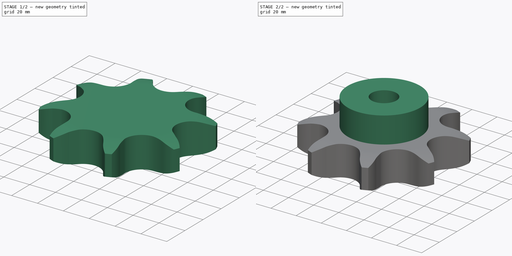
[diagram: build sequence overview — one tinted view per stage of 2, left to right]
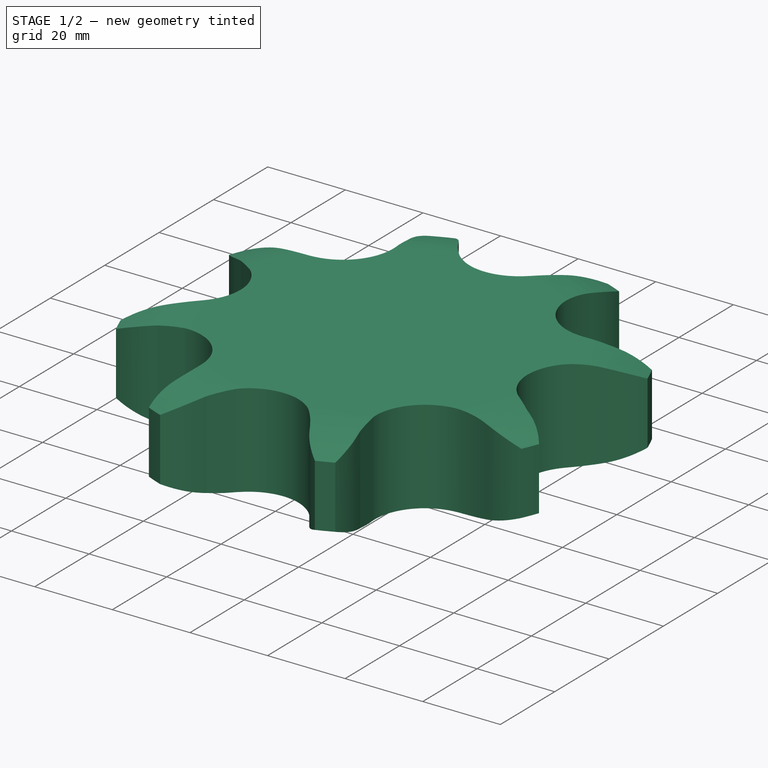
[diagram: stage 1 of 2 — iso view after this stage's code; geometry added in this stage tinted green]
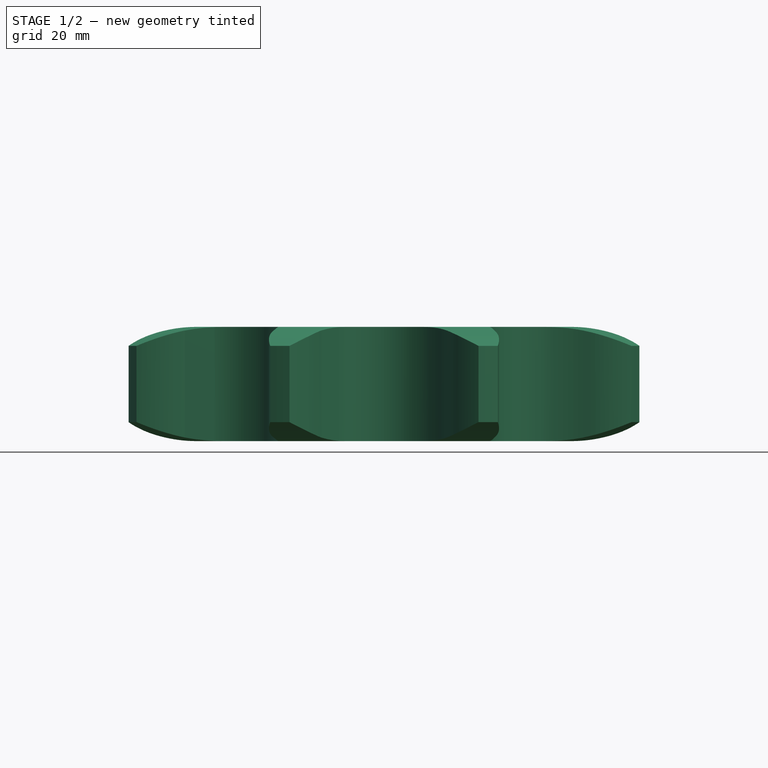
[diagram: stage 1 of 2 — front view after this stage's code; geometry added in this stage tinted green]
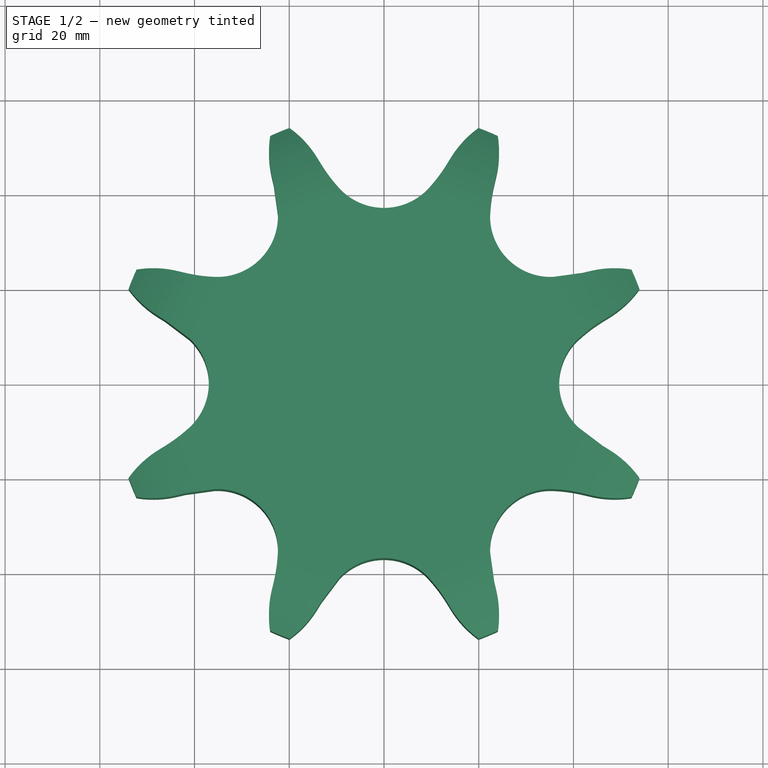
[diagram: stage 1 of 2 — top view after this stage's code; geometry added in this stage tinted green]
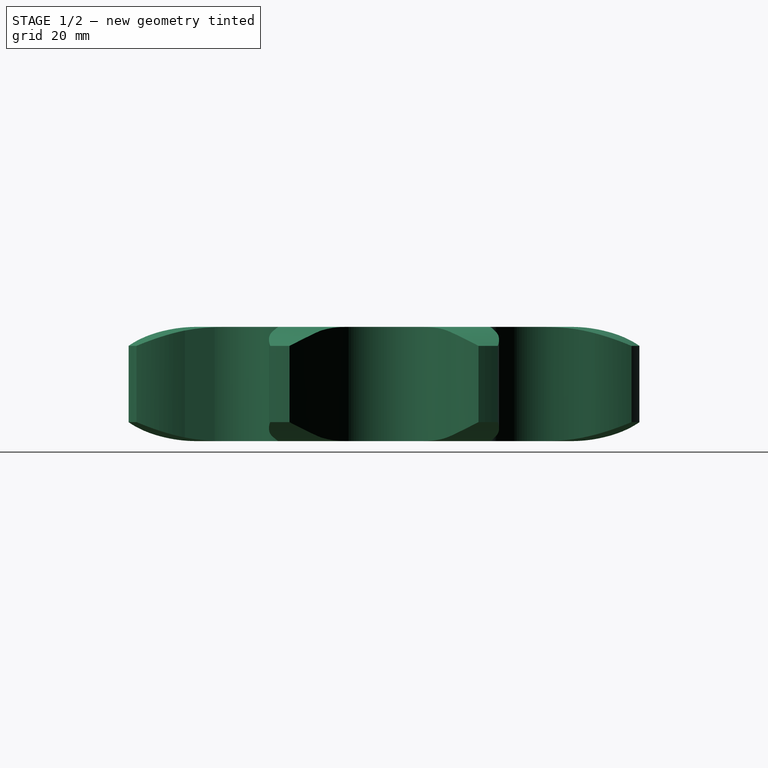
[diagram: stage 1 of 2 — right view after this stage's code; geometry added in this stage tinted green]
FCSTD DOCUMENT  (FreeCAD 0.21R33694 (Git))
Label: Sprocket ANSI simplex 1½x1
License: Attribution 4.0 International (CC BY 4.0)
LicenseURL: http://creativecommons.org/licenses/by/4.0/
objects: Sketcher::SketchObject×3, PartDesign::Pad×2, Spreadsheet::Sheet×1, Part::Part2DObjectPython×1, PartDesign::Groove×1, PartDesign::Pocket×1, PartDesign::Body×1, App::Part×1
note: 13 computed .brp shape members not serialized (recipe doc carries the construction recipe); baked Part::Feature solids carry a one-line shape summary decoded from their .brp

FEATURE [Spreadsheet::Sheet] Spreadsheet  label="Data"
  TeethNumber = 0
  cells = A1='Teeth Number; B1='P (Pitch); C1='Wc (Chain width); D1='Dr (Roller diameter); E1='Tr (Tooth radius); F1='Rw (Radius width); G1='Wt (Tooth width); H1='z (Number of teeth); I1='De (External Diameter); J1='Dp (pitch diameter); K1='d (Hub diameter); L1='D (Hole diameter); M1='H (Total height); A2==hiddenref(.TeethNumber.String); B2(P)==.B3; C2(Wc)==.C3; D2(Dr)==.D3; E2(Tr)==.E3; F2(Rw)==.F3; G2(Wt)==.G3; H2(z)==.H3; I2(De)==.I3; J2(Dp)==.J3; K2(d)==.K3; L2(D)==.L3; M2(H)==.M3; A3='Z 8; B3=38.1; C3=25.04; D3=25.4; E3=38; F3=4; G3=24.1; H3=8; I3=115; J3=99.55; K3=58; L3=20; M3=45; A4='Z 9; B4=38.1; C4=25.04; D4=25.4; E4=38; F4=4; G4=24.1; H4=9; I4=126.4; J4=111.4; K4=70; L4=20; M4=45; A5='Z 10; B5=38.1; C5=25.04; D5=25.4; E5=38; F5=4; G5=24.1; H5=10; I5=138; J5=123.29; K5=80; L5=20; M5=45; A6='Z 11; B6=38.1; C6=25.04; D6=25.4; E6=38; F6=4; G6=24.1; H6=11; I6=150; J6=135.21; K6=90; L6=25; M6=50; A7='Z 12; B7=38.1; C7=25.04; D7=25.4; E7=38; F7=4; G7=24.1; H7=12; I7=162; J7=147.22; K7=102; L7=25; M7=50; A8='Z 13; B8=38.1; C8=25.04; D8=25.4; E8=38; F8=4; G8=24.1; H8=13; I8=174.2; J8=159.18; K8=114; L8=25; M8=50; A9='Z 14; B9=38.1; C9=25.04; D9=25.4; E9=38; F9=4; G9=24.1; H9=14; I9=186.2; J9=171.22; K9=128; L9=25; M9=50; A10='Z 15; B10=38.1; C10=25.04; D10=25.4; E10=38; F10=4; G10=24.1; H10=15; I10=198.2; J10=183.26; K10=140; L10=25; M10=50; A11='Z 16; B11=38.1; C11=25.04; D11=25.4; E11=38; F11=4; G11=24.1; H11=16; I11=210.3; J11=195.3; K11=140; L11=25; M11=55; A12='Z 17; B12=38.1; C12=25.04; D12=25.4; E12=38; F12=4; G12=24.1; H12=17; I12=222.3; J12=207.34; K12=140; L12=25; M12=55; A13='Z 18; B13=38.1; C13=25.04; D13=25.4; E13=38; F13=4; G13=24.1; H13=18; I13=234.3; J13=219.42; K13=140; L13=25; M13=55; A14='Z 19; B14=38.1; C14=25.04; D14=25.4; E14=38; F14=4; G14=24.1; H14=19; I14=246.5; J14=231.49; K14=140; L14=25; M14=55; A15='Z 20; B15=38.1; C15=25.04; D15=25.4; E15=38; F15=4; G15=24.1; H15=20; I15=258.6; J15=243.57; K15=140; L15=25; M15=55; A16='Z 21; B16=38.1; C16=25.04; D16=25.4; E16=38; +294 more cells
  expr: .TeethNumber.Enum = cells[<<A3:|>>]
  expr: .cells.Bind.B2.ZZ2 = tuple(.cells; <<B>> + str(hiddenref(TeethNumber) + 3); <<ZZ>> + str(hiddenref(TeethNumber) + 3))
FEATURE [Part::Part2DObjectPython] Sprocket  label="Teeth sketch"  # Draft 2D object (typed FeaturePython)
  ANSISize = 120
  NumberOfTeeth = 8
  Pitch = 38.1
  RollerDiameter = 25.4
  expr: NumberOfTeeth = <<Data>>.z
  expr: Pitch = <<Data>>.P
  expr: RollerDiameter = <<Data>>.Dr
FEATURE [PartDesign::Pad] Pad  label="Teeth"
  Direction = (0,0,1)
  Length = 24.1
  Length2 = 100
  Profile = -> Sprocket
  Type = 0
  expr: Length = <<Data>>.Wt
FEATURE [Sketcher::SketchObject] Sketch  label="Radius"
  FullyConstrained = true
  MapMode = 5
  Placement = pos=(0,0,0) rot=(1,0,0;1.5708rad)
  Support = -> [XZ_Plane]
  expr: .Constraints.Re = <<Data>>.De / 2
  expr: .Constraints.Rw = <<Data>>.Rw
  expr: .Constraints.Tr = <<Data>>.Tr
  expr: .Constraints.Wt = <<Data>>.Wt
  sketch-geometry (10):
    g0: LineSegment StartX=40.5294 StartY=0 StartZ=0 EndX=57.5 EndY=0 EndZ=0
    g1: LineSegment StartX=57.5 StartY=0 StartZ=0 EndX=57.5 EndY=4 EndZ=0
    g2: ArcOfCircle CenterX=40.5294 CenterY=38 CenterZ=0 NormalX=0 NormalY=0 NormalZ=1 AngleXU=0 Radius=38 StartAngle=4.71239 EndAngle=5.17534
    g3: LineSegment StartX=57.5 StartY=4 StartZ=0 EndX=57.5 EndY=20.1 EndZ=0
    g4: LineSegment StartX=40.5294 StartY=24.1 StartZ=0 EndX=57.5 EndY=24.1 EndZ=0
    g5: LineSegment StartX=57.5 StartY=24.1 StartZ=0 EndX=57.5 EndY=20.1 EndZ=0
    g6: ArcOfCircle CenterX=40.5294 CenterY=-13.9 CenterZ=0 NormalX=0 NormalY=0 NormalZ=1 AngleXU=0 Radius=38 StartAngle=1.10784 EndAngle=1.5708
    g7: LineSegment StartX=57.5 StartY=24.1 StartZ=0 EndX=74.4706 EndY=24.1 EndZ=0
    g8: LineSegment StartX=74.4706 StartY=24.1 StartZ=0 EndX=74.4706 EndY=0 EndZ=0
    g9: LineSegment StartX=74.4706 StartY=0 StartZ=0 EndX=57.5 EndY=0 EndZ=0
  constraints (28):
    c: PointOnObject(g0,g-1)
    c: Horizontal(g0)
    c: Coincident(g0,g1)
    c: Vertical(g1)
    c: Tangent(g2,g0) = -1.5708
    c: Coincident(g2,g1)
    c: Coincident(g3,g1)
    c: Vertical(g3)
    c: Horizontal(g4)
    c: Coincident(g4,g5)
    c: Vertical(g5)
    c: Coincident(g6,g5)
    c: Tangent(g6,g4) = 1.5708
    c: Coincident(g5,g3)
    c: Equal(g2,g6)
    c: Equal(g5,g1)
    c: Radius(g2) = 38  'Tr'
    c: DistanceY(g0,g4) = 24.1  'Wt'
    c: DistanceX(g0) = 57.5  'Re'
    c: DistanceY(g1,g1) = 4  'Rw'
    c: Coincident(g4,g7)
    c: Coincident(g7,g8)
    c: Vertical(g8)
    c: Coincident(g8,g9)
    c: Coincident(g9,g0)
    c: Horizontal(g7)
    c: Horizontal(g9)
    c: Equal(g0,g9)
FEATURE [PartDesign::Groove] Groove  label="Teeth Radius"
  Angle = 360
  Axis = (-3e-16,3e-16,1)
  Base = (0,0,0)
  BaseFeature = -> Pad
  Profile = -> Sketch
  ReferenceAxis = -> Z_Axis
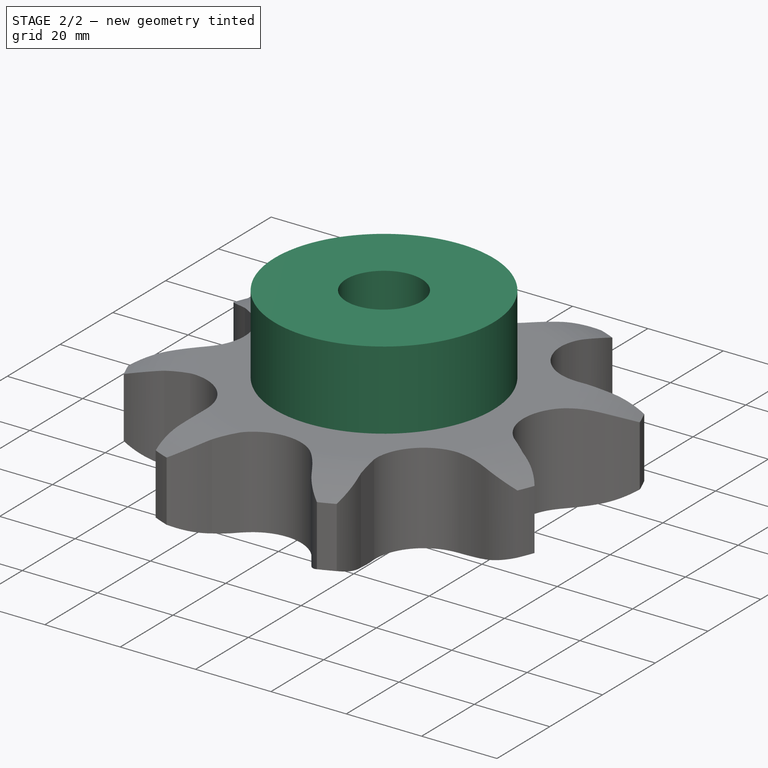
[diagram: stage 2 of 2 — iso view after this stage's code; geometry added in this stage tinted green]
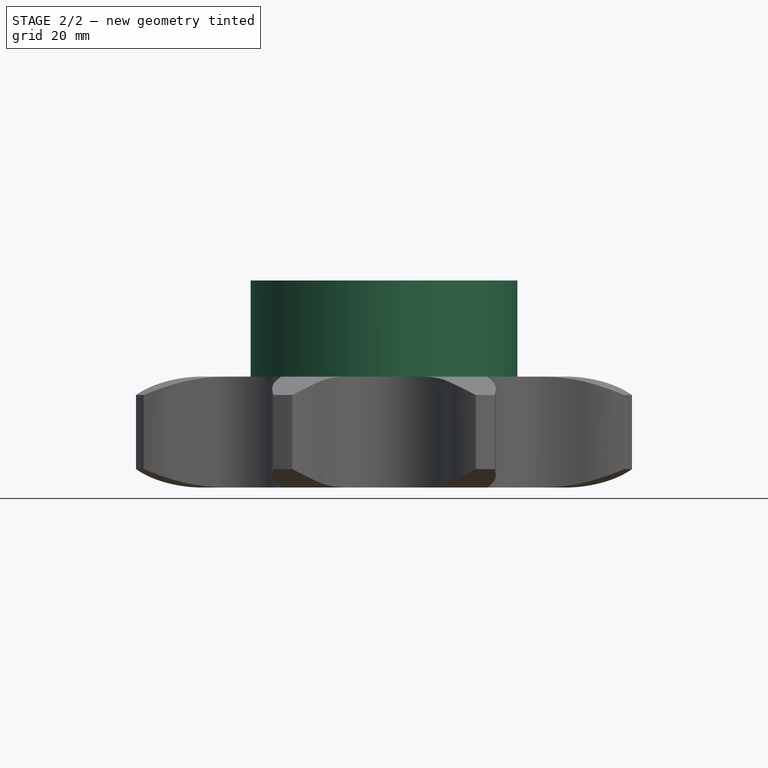
[diagram: stage 2 of 2 — front view after this stage's code; geometry added in this stage tinted green]
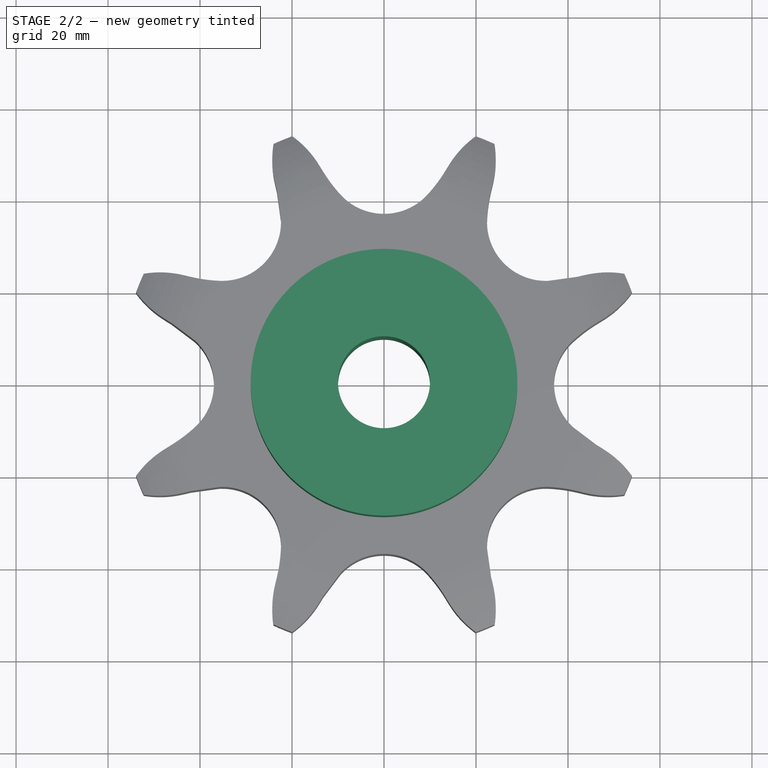
[diagram: stage 2 of 2 — top view after this stage's code; geometry added in this stage tinted green]
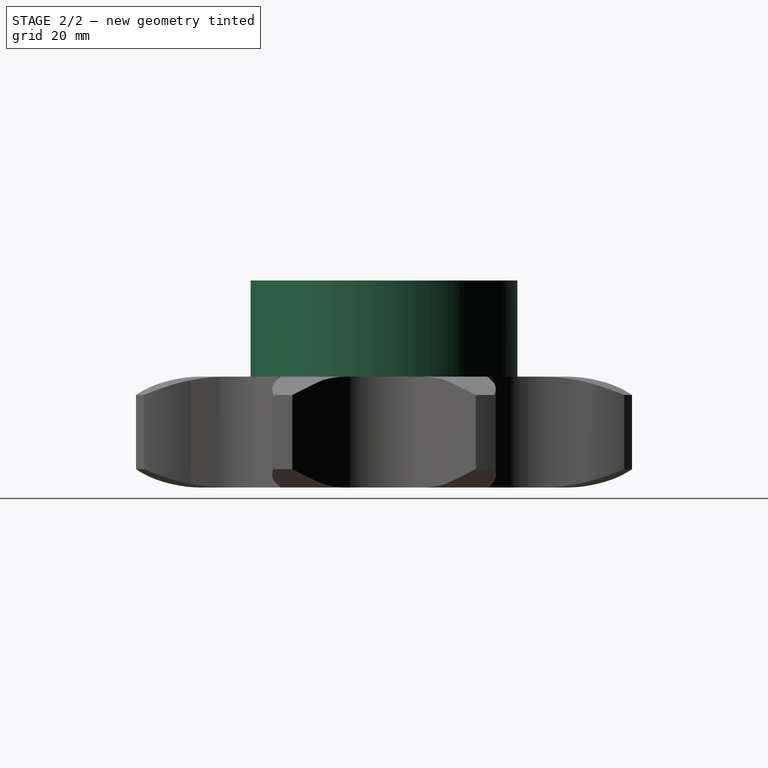
[diagram: stage 2 of 2 — right view after this stage's code; geometry added in this stage tinted green]
FEATURE [Sketcher::SketchObject] Sketch001  label="Hub sketch"
  FullyConstrained = true
  MapMode = 5
  Support = -> [XY_Plane]
  expr: .Constraints.d = <<Data>>.d
  sketch-geometry (1):
    g0: Circle CenterX=0 CenterY=0 CenterZ=0 NormalX=0 NormalY=0 NormalZ=1 AngleXU=0 Radius=29
  constraints (2):
    c: Coincident(g0,g-1)
    c: Diameter(g0) = 58  'd'
FEATURE [PartDesign::Pad] Pad001  label="Hub"
  BaseFeature = -> Groove
  Direction = (0,0,1)
  Length = 45
  Length2 = 100
  Profile = -> Sketch001
  Type = 0
FEATURE [Sketcher::SketchObject] Sketch002  label="Hole sketch"
  FullyConstrained = true
  MapMode = 5
  Support = -> [XY_Plane]
  expr: .Constraints.D = <<Data>>.D
  sketch-geometry (1):
    g0: Circle CenterX=0 CenterY=0 CenterZ=0 NormalX=0 NormalY=0 NormalZ=1 AngleXU=0 Radius=10
  constraints (2):
    c: Coincident(g0,g-1)
    c: Diameter(g0) = 20  'D'
FEATURE [PartDesign::Pocket] Pocket  label="Hole"
  BaseFeature = -> Pad001
  Direction = (0,0,-1)
  Length = 5
  Length2 = 100
  Midplane = true
  Profile = -> Sketch002
  Type = 1
FEATURE [PartDesign::Body] Body  label="Sprocket"
  Group = -> [Sprocket,Pad,Sketch,Groove,Sketch001,Pad001,Sketch002,Pocket]
  Origin = -> Origin
  Tip = -> Pocket
FEATURE [App::Part] Part  label="Sprocket ANSI simplex 1½x1"
  Group = -> [Body]
  Origin = -> Origin001
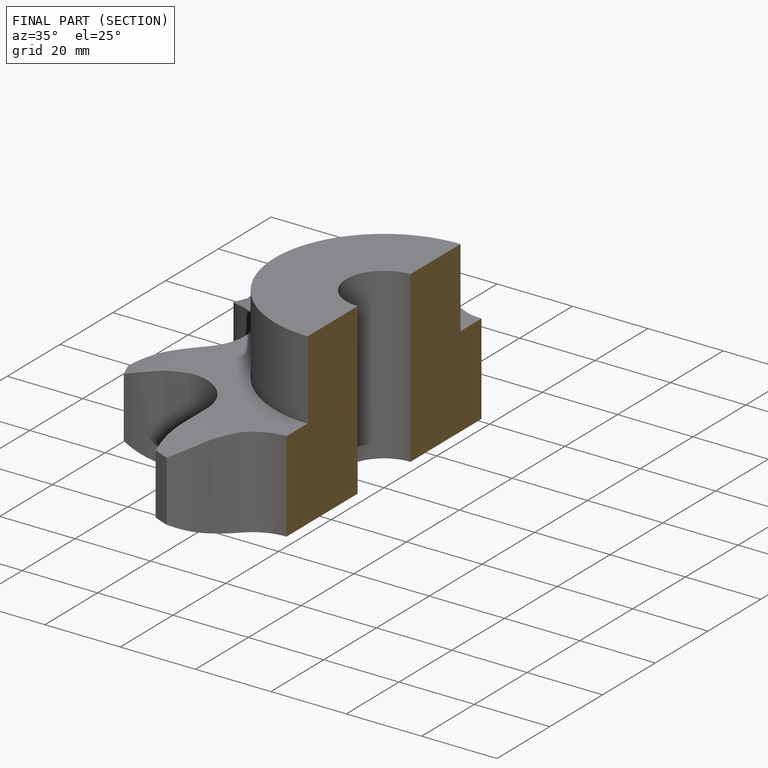
[diagram: finished part — half-section view (interior)]
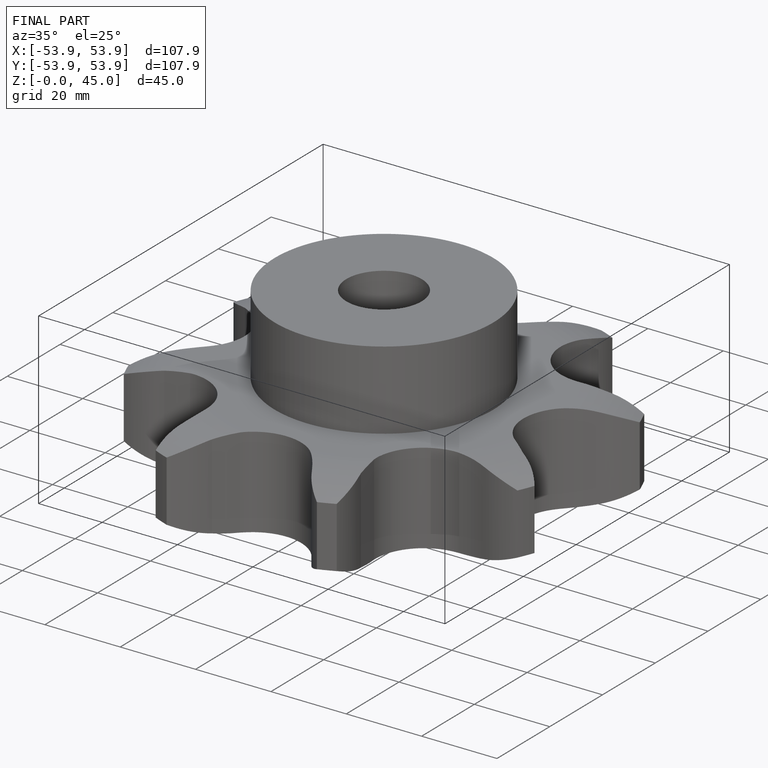
[diagram: finished part — iso view with bounding-box wireframe]
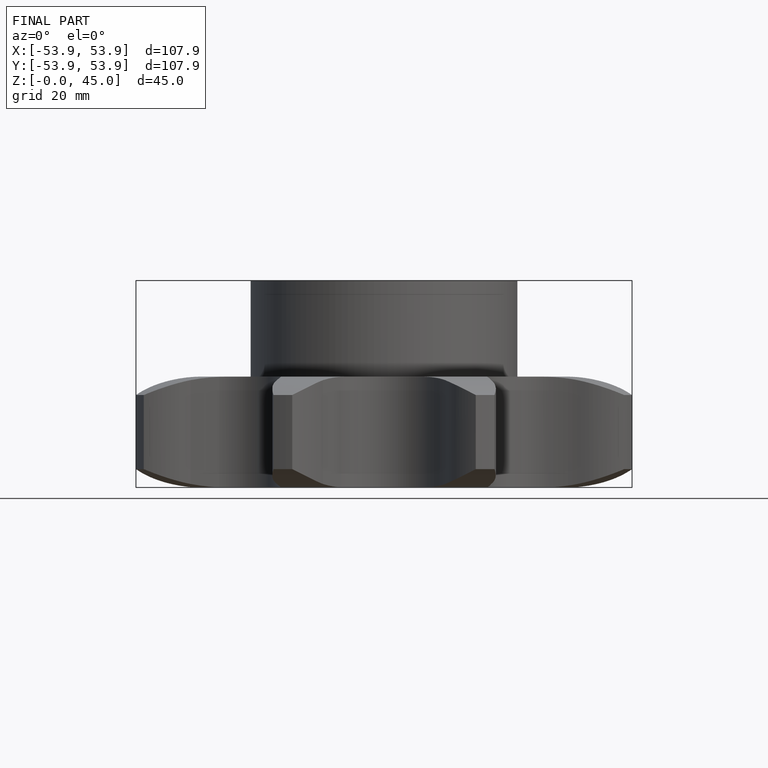
[diagram: finished part — front view with bounding-box wireframe]
